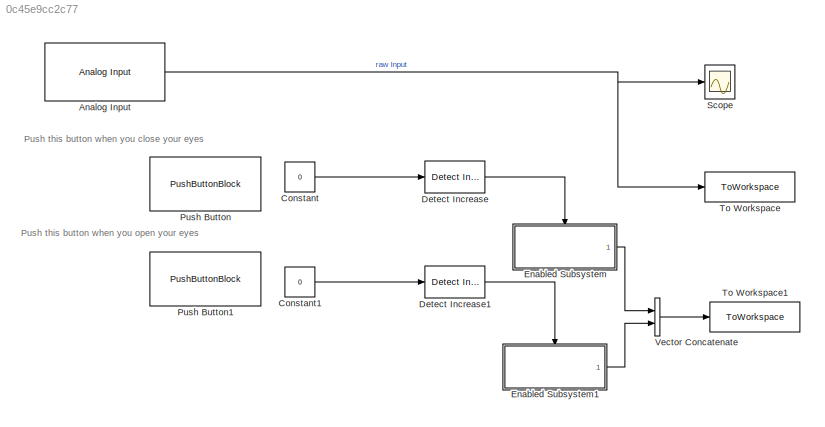
MODEL slx_0c45e9cc2c77
KIND model
CONFIG AbsTol = auto
CONFIG EnableMultiTasking = on
CONFIG FixedStep = auto
CONFIG MaxStep = auto
CONFIG MinStep = auto
CONFIG RelTol = 1e-3
CONFIG SampleTimeConstraint = Unconstrained
CONFIG SolverName = FixedStepAuto
CONFIG StartTime = 0.0
CONFIG StopTime = inf
BLOCK [Reference] Analog Input  REF=arduinolib/Analog Input
  Ports = [0, 1]
  SourceBlock = arduinolib/Analog Input
  SourceProductBaseCode = ARDUINO
  SourceType = Arduino Analog Input
BLOCK [Constant] Constant
  SampleTime = -1
  Value = 0
BLOCK [Constant] Constant1
  SampleTime = -1
  Value = 0
BLOCK [Reference] Detect Increase  REF=simulink/Logic and Bit
Operations/Detect
Increase
  Ports = [1, 1]
  SourceBlock = simulink/Logic and Bit\nOperations/Detect\nIncrease
  SourceProductBaseCode = SL
  SourceType = Detect Increase
BLOCK [Reference] Detect Increase1  REF=simulink/Logic and Bit
Operations/Detect
Increase
  Ports = [1, 1]
  SourceBlock = simulink/Logic and Bit\nOperations/Detect\nIncrease
  SourceProductBaseCode = SL
  SourceType = Detect Increase
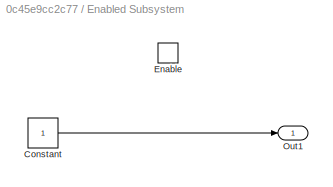
BLOCK [SubSystem] Enabled Subsystem
  Ports = [0, 1, 1]
  RequestExecContextInheritance = off
  TreatAsAtomicUnit = on
BLOCK [Constant] Enabled Subsystem/Constant
  SampleTime = -1
BLOCK [EnablePort] Enabled Subsystem/Enable
  Ports = []
BLOCK [Outport] Enabled Subsystem/Out1
  InitialOutput = 0
  OutputWhenDisabled = reset
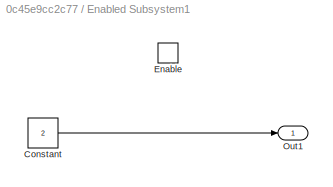
BLOCK [SubSystem] Enabled Subsystem1
  Ports = [0, 1, 1]
  RequestExecContextInheritance = off
  TreatAsAtomicUnit = on
BLOCK [Constant] Enabled Subsystem1/Constant
  SampleTime = -1
  Value = 2
BLOCK [EnablePort] Enabled Subsystem1/Enable
  Ports = []
BLOCK [Outport] Enabled Subsystem1/Out1
  InitialOutput = 0
  OutputWhenDisabled = reset
BLOCK [PushButtonBlock] Push Button
  ButtonText = Eyes closed
BLOCK [PushButtonBlock] Push Button1
  ButtonText = Eyes opened
BLOCK [Scope] Scope
  Floating = off
  NumInputPorts = 1
  Ports = [1]
  ScopeSpecificationString = Simulink.scopes.TimeScopeBlockCfg('CurrentConfiguration', extmgr.ConfigurationSet(extmgr.Configuration('Core','General UI',true),extmgr.Configuration('Core','Source UI',true),extmgr.Configuration('Sources','WiredSimulink',true,'DataLoggingVariableName','ECGdata','DataLoggingSaveFormat','StructureWithTime','SampleTime','1/250'),extmgr.Configuration('Visuals','Time Domain',true,'PlotType','Line','Se...<+1720ch>
BLOCK [ToWorkspace] To Workspace
  FixptAsFi = on
  MaxDataPoints = inf
  Ports = [1]
  SampleTime = -1
  SaveFormat = Structure With Time
  VariableName = EEGdata
BLOCK [ToWorkspace] To Workspace1
  FixptAsFi = on
  MaxDataPoints = inf
  Ports = [1]
  SampleTime = -1
  SaveFormat = Timeseries
  VariableName = events
BLOCK [Concatenate] Vector Concatenate
  Ports = [2, 1]
ANNOTATION (root): Push this button when you close your eyes
ANNOTATION (root): Push this button when you open your eyes
NET Analog Input:1 -> Scope:1, To Workspace:1
LINE Constant1:1 -> Detect Increase1:1
LINE Constant:1 -> Detect Increase:1
LINE Detect Increase1:1 -> Enabled Subsystem1:enable
LINE Detect Increase:1 -> Enabled Subsystem:enable
LINE Enabled Subsystem/Constant:1 -> Enabled Subsystem/Out1:1
LINE Enabled Subsystem1/Constant:1 -> Enabled Subsystem1/Out1:1
LINE Enabled Subsystem1:1 -> Vector Concatenate:2
LINE Enabled Subsystem:1 -> Vector Concatenate:1
LINE Vector Concatenate:1 -> To Workspace1:1
note: NET lines group one-source signal fan-out (src -> all destinations, sorted); 1:1 wires keep LINE
